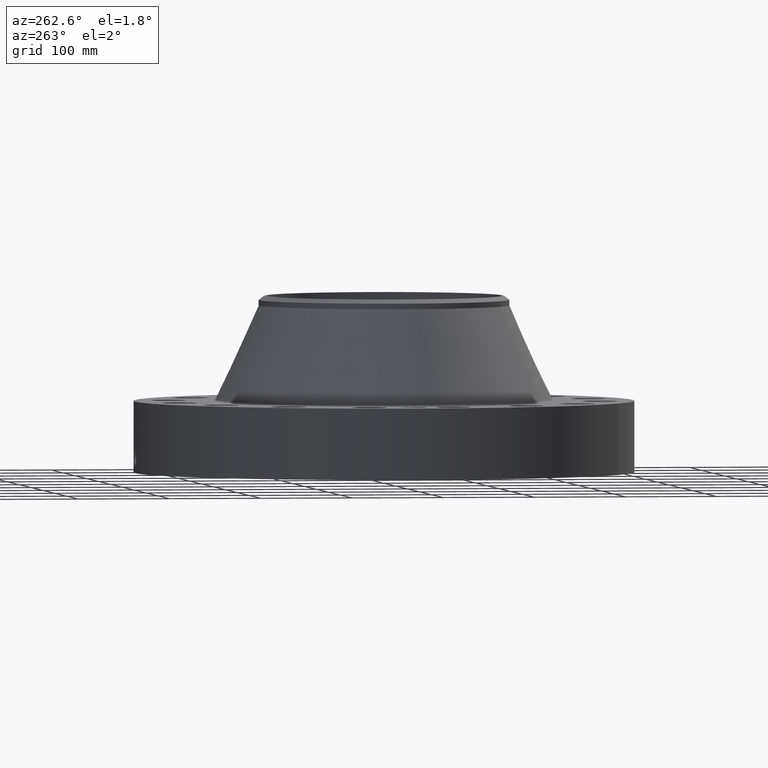
[diagram: clean part render]
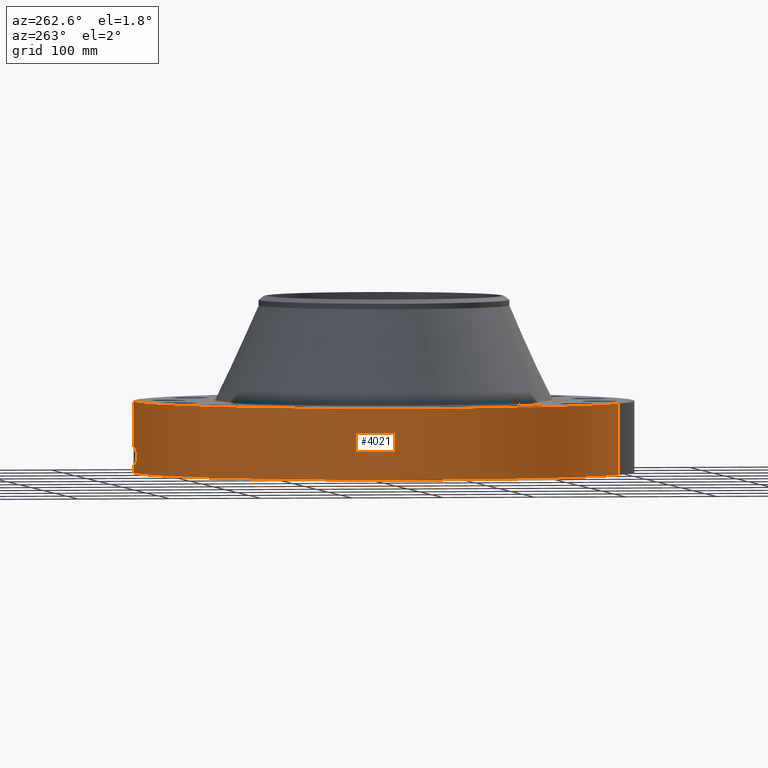
[diagram: same view with one face highlighted and labeled with its STEP entity id]
A machine part, auxiliary view. The second image highlights one B-rep face of the part: STEP entity #4021.
In plain terms, the highlighted cylindrical surface (partial cylindrical patch) has radius 273.05 mm, axis along (0, 0, -1).
Its self-contained STEP definition (entity closure, byte-faithful):
#2927=AXIS2_PLACEMENT_3D('Circle Axis2P3D',#2925,#2926,$) ;
#3907=AXIS2_PLACEMENT_3D('Cylinder Axis2P3D',#3904,#3905,#3906) ;
#3911=AXIS2_PLACEMENT_3D('Circle Axis2P3D',#3909,#3910,$) ;
#2920=CARTESIAN_POINT('Vertex',(5.15382454002,9.43401254036,3.06200000001)) ;
#2922=CARTESIAN_POINT('Vertex',(-5.15382454002,-9.43401254036,3.06200000001)) ;
#2925=CARTESIAN_POINT('Axis2P3D Location',(0.,0.,3.06200000001)) ;
#3904=CARTESIAN_POINT('Axis2P3D Location',(0.,0.,3.78100000002)) ;
#3909=CARTESIAN_POINT('Axis2P3D Location',(0.,0.,1.1189649382E-015)) ;
#3913=CARTESIAN_POINT('Vertex',(-5.15382454002,-9.43401254036,1.1189649382E-015)) ;
#3915=CARTESIAN_POINT('Vertex',(5.15382454002,9.43401254036,1.1189649382E-015)) ;
#3918=CARTESIAN_POINT('Line Origine',(-5.15382454002,-9.43401254036,1.53100000001)) ;
#3923=CARTESIAN_POINT('Line Origine',(5.15382454002,9.43401254036,1.53100000001)) ;
#3935=CARTESIAN_POINT('Control Point',(-0.0567911580479,10.749849988,1.09953066564)) ;
#3936=CARTESIAN_POINT('Control Point',(-0.0382607918177,10.7499478834,1.10254463037)) ;
#3937=CARTESIAN_POINT('Control Point',(-0.0194899697367,10.7499987257,1.10408046883)) ;
#3938=CARTESIAN_POINT('Control Point',(-0.000716018613627,10.7499999762,1.10411849942)) ;
#3939=CARTESIAN_POINT('Vertex',(-0.0567786029696,10.7498503151,1.09953298772)) ;
#3941=CARTESIAN_POINT('Vertex',(-0.00071591706704,10.7499999762,1.10411850989)) ;
#3945=CARTESIAN_POINT('Control Point',(-0.0567785051352,10.7498500549,1.09953241646)) ;
#3946=CARTESIAN_POINT('Control Point',(-0.0966609943071,10.7496394037,1.09488611198)) ;
#3947=CARTESIAN_POINT('Control Point',(-0.135841720318,10.7492020644,1.08297077303)) ;
#3948=CARTESIAN_POINT('Control Point',(-0.171864801758,10.7486260746,1.06462752922)) ;
#3949=CARTESIAN_POINT('Vertex',(-0.171864801758,10.7486260746,1.06462752922)) ;
#3953=CARTESIAN_POINT('Control Point',(-0.0305849635117,10.7499564911,0.341157246872)) ;
#3954=CARTESIAN_POINT('Control Point',(-0.0995195743365,10.7497603636,0.349904448041)) ;
#3955=CARTESIAN_POINT('Control Point',(-0.166100801976,10.7490183691,0.374153508167)) ;
#3956=CARTESIAN_POINT('Control Point',(-0.2254158641,10.7478174889,0.4130283909)) ;
#3957=CARTESIAN_POINT('Control Point',(-0.297416310973,10.7459654521,0.487044319173)) ;
#3958=CARTESIAN_POINT('Control Point',(-0.341890646326,10.7445741103,0.577030567406)) ;
#3959=CARTESIAN_POINT('Control Point',(-0.353305833217,10.7441977759,0.607759337455)) ;
#3960=CARTESIAN_POINT('Control Point',(-0.371781674246,10.7435740429,0.679149754843)) ;
#3961=CARTESIAN_POINT('Control Point',(-0.373464766953,10.7435087126,0.752550428412)) ;
#3962=CARTESIAN_POINT('Control Point',(-0.369105042754,10.7436639577,0.793246299052)) ;
#3963=CARTESIAN_POINT('Control Point',(-0.346835507723,10.7444360513,0.885381884952)) ;
#3964=CARTESIAN_POINT('Control Point',(-0.297852114609,10.745933534,0.966636986842)) ;
#3965=CARTESIAN_POINT('Control Point',(-0.261839346068,10.7469281328,1.00745832403)) ;
#3966=CARTESIAN_POINT('Control Point',(-0.219078120266,10.7478711588,1.04058612392)) ;
#3967=CARTESIAN_POINT('Control Point',(-0.171864801757,10.7486260746,1.06462752922)) ;
#3968=CARTESIAN_POINT('Vertex',(-0.0305849635117,10.7499564911,0.341157246872)) ;
#3972=CARTESIAN_POINT('Control Point',(-0.0305849635117,10.7499564911,0.341157246872)) ;
#3973=CARTESIAN_POINT('Control Point',(-0.0203845311994,10.7499855126,0.340869975579)) ;
#3974=CARTESIAN_POINT('Control Point',(-0.0101780214078,10.7500000026,0.340942613548)) ;
#3975=CARTESIAN_POINT('Control Point',(2.72878352476E-006,10.75,0.341374667805)) ;
#3976=CARTESIAN_POINT('Vertex',(2.72878353604E-006,10.75,0.341374667805)) ;
#3980=CARTESIAN_POINT('Control Point',(0.192994359745,10.7482674501,0.396736654106)) ;
#3981=CARTESIAN_POINT('Control Point',(0.149148210383,10.7490547453,0.371643882953)) ;
#3982=CARTESIAN_POINT('Control Point',(0.101145838374,10.7496790029,0.353642043181)) ;
#3983=CARTESIAN_POINT('Control Point',(0.0508155768841,10.7499999871,0.343531076646)) ;
#3984=CARTESIAN_POINT('Control Point',(2.72878354385E-006,10.75,0.341374667805)) ;
#3985=CARTESIAN_POINT('Vertex',(0.192994359745,10.7482674501,0.396736654106)) ;
#3989=CARTESIAN_POINT('Control Point',(0.192994359745,10.7482674501,0.396736654106)) ;
#3990=CARTESIAN_POINT('Control Point',(0.221848519654,10.7477493489,0.413249638308)) ;
#3991=CARTESIAN_POINT('Control Point',(0.249019942461,10.7471646063,0.432641028976)) ;
#3992=CARTESIAN_POINT('Control Point',(0.274104241885,10.7465429509,0.454726455906)) ;
#3993=CARTESIAN_POINT('Control Point',(0.340614582425,10.7447180983,0.526853948125)) ;
#3994=CARTESIAN_POINT('Control Point',(0.382738263717,10.7432168248,0.616816595611)) ;
#3995=CARTESIAN_POINT('Control Point',(0.397428634081,10.7426387549,0.681363798)) ;
#3996=CARTESIAN_POINT('Control Point',(0.397846491243,10.7426626108,0.808339941981)) ;
#3997=CARTESIAN_POINT('Control Point',(0.348008140733,10.7444099647,0.923403285547)) ;
#3998=CARTESIAN_POINT('Control Point',(0.312903280606,10.7455631425,0.973099164932)) ;
#3999=CARTESIAN_POINT('Control Point',(0.234583432992,10.7476755031,1.04721943466)) ;
#4000=CARTESIAN_POINT('Control Point',(0.137661984683,10.7492549665,1.08962322104)) ;
#4001=CARTESIAN_POINT('Control Point',(0.0921849841595,10.7497559084,1.10158731153)) ;
#4002=CARTESIAN_POINT('Control Point',(0.0458118506293,10.7500001103,1.1064002962)) ;
#4003=CARTESIAN_POINT('Control Point',(-2.58579355259E-005,10.75,1.10415298431)) ;
#4004=CARTESIAN_POINT('Vertex',(-2.58579355406E-005,10.75,1.10415298431)) ;
#4008=CARTESIAN_POINT('Control Point',(-0.000715917057181,10.7499999762,1.10411850987)) ;
#4009=CARTESIAN_POINT('Control Point',(-0.000370911729581,10.7499999992,1.10413606717)) ;
#4010=CARTESIAN_POINT('Control Point',(-2.58579409267E-005,10.75,1.10415298431)) ;
#2926=DIRECTION('Axis2P3D Direction',(0.,0.,-0.0393700787402)) ;
#3905=DIRECTION('Axis2P3D Direction',(0.,0.,-0.0393700787402)) ;
#3906=DIRECTION('Axis2P3D XDirection',(0.0188750212049,0.0345504945626,0.)) ;
#3910=DIRECTION('Axis2P3D Direction',(0.,0.,-0.0393700787402)) ;
#3919=DIRECTION('Vector Direction',(0.,0.,-0.0393700787402)) ;
#3924=DIRECTION('Vector Direction',(0.,0.,-0.0393700787402)) ;
#3920=VECTOR('Line Direction',#3919,0.0393700787402) ;
#3925=VECTOR('Line Direction',#3924,0.0393700787402) ;
#3929=ORIENTED_EDGE('',*,*,#3917,.F.) ;
#3930=ORIENTED_EDGE('',*,*,#3922,.T.) ;
#3931=ORIENTED_EDGE('',*,*,#2929,.T.) ;
#3932=ORIENTED_EDGE('',*,*,#3927,.F.) ;
#4013=ORIENTED_EDGE('',*,*,#3943,.F.) ;
#4014=ORIENTED_EDGE('',*,*,#3951,.T.) ;
#4015=ORIENTED_EDGE('',*,*,#3970,.F.) ;
#4016=ORIENTED_EDGE('',*,*,#3978,.T.) ;
#4017=ORIENTED_EDGE('',*,*,#3987,.F.) ;
#4018=ORIENTED_EDGE('',*,*,#4006,.T.) ;
#4019=ORIENTED_EDGE('',*,*,#4011,.F.) ;
#4020=FACE_BOUND('',#4012,.T.) ;
#4021=ADVANCED_FACE('PartBody',(#3933,#4020),#3908,.T.) ;
#3934=B_SPLINE_CURVE_WITH_KNOTS('',3,(#3935,#3936,#3937,#3938),.UNSPECIFIED.,.F.,.U.,(4,4),(4.43847121017,6.52127022004),.UNSPECIFIED.) ;
#3944=B_SPLINE_CURVE_WITH_KNOTS('',3,(#3945,#3946,#3947,#3948),.UNSPECIFIED.,.F.,.U.,(4,4),(0.,4.51158030922),.UNSPECIFIED.) ;
#3952=B_SPLINE_CURVE_WITH_KNOTS('',5,(#3953,#3954,#3955,#3956,#3957,#3958,#3959,#3960,#3961,#3962,#3963,#3964,#3965,#3966,#3967),.UNSPECIFIED.,.F.,.U.,(6,3,3,3,6),(0.,12.0763323709,17.9495279225,25.3608806636,35.2159825354),.UNSPECIFIED.) ;
#3971=B_SPLINE_CURVE_WITH_KNOTS('',3,(#3972,#3973,#3974,#3975),.UNSPECIFIED.,.F.,.U.,(4,4),(0.,1.06400746184),.UNSPECIFIED.) ;
#3979=B_SPLINE_CURVE_WITH_KNOTS('',4,(#3980,#3981,#3982,#3983,#3984),.UNSPECIFIED.,.F.,.U.,(5,5),(0.,7.08071582335),.UNSPECIFIED.) ;
#3988=B_SPLINE_CURVE_WITH_KNOTS('',5,(#3989,#3990,#3991,#3992,#3993,#3994,#3995,#3996,#3997,#3998,#3999,#4000,#4001,#4002,#4003),.UNSPECIFIED.,.F.,.U.,(6,3,3,3,6),(0.,5.82457369076,17.1408346586,27.814930593,36.3829492207),.UNSPECIFIED.) ;
#4007=B_SPLINE_CURVE_WITH_KNOTS('',2,(#4008,#4009,#4010),.UNSPECIFIED.,.F.,.U.,(3,3),(1.03533572087,1.06113480653),.UNSPECIFIED.) ;
#2928=CIRCLE('generated circle',#2927,10.75) ;
#3912=CIRCLE('generated circle',#3911,10.75) ;
#3908=CYLINDRICAL_SURFACE('generated cylinder',#3907,10.75) ;
#2929=EDGE_CURVE('',#2923,#2921,#2928,.T.) ;
#3917=EDGE_CURVE('',#3914,#3916,#3912,.T.) ;
#3922=EDGE_CURVE('',#3914,#2923,#3921,.F.) ;
#3927=EDGE_CURVE('',#3916,#2921,#3926,.F.) ;
#3943=EDGE_CURVE('',#3940,#3942,#3934,.T.) ;
#3951=EDGE_CURVE('',#3940,#3950,#3944,.T.) ;
#3970=EDGE_CURVE('',#3969,#3950,#3952,.T.) ;
#3978=EDGE_CURVE('',#3969,#3977,#3971,.T.) ;
#3987=EDGE_CURVE('',#3986,#3977,#3979,.T.) ;
#4006=EDGE_CURVE('',#3986,#4005,#3988,.T.) ;
#4011=EDGE_CURVE('',#3942,#4005,#4007,.T.) ;
#3928=EDGE_LOOP('',(#3929,#3930,#3931,#3932)) ;
#4012=EDGE_LOOP('',(#4013,#4014,#4015,#4016,#4017,#4018,#4019)) ;
#3933=FACE_OUTER_BOUND('',#3928,.T.) ;
#3921=LINE('Line',#3918,#3920) ;
#3926=LINE('Line',#3923,#3925) ;
#2921=VERTEX_POINT('',#2920) ;
#2923=VERTEX_POINT('',#2922) ;
#3914=VERTEX_POINT('',#3913) ;
#3916=VERTEX_POINT('',#3915) ;
#3940=VERTEX_POINT('',#3939) ;
#3942=VERTEX_POINT('',#3941) ;
#3950=VERTEX_POINT('',#3949) ;
#3969=VERTEX_POINT('',#3968) ;
#3977=VERTEX_POINT('',#3976) ;
#3986=VERTEX_POINT('',#3985) ;
#4005=VERTEX_POINT('',#4004) ;